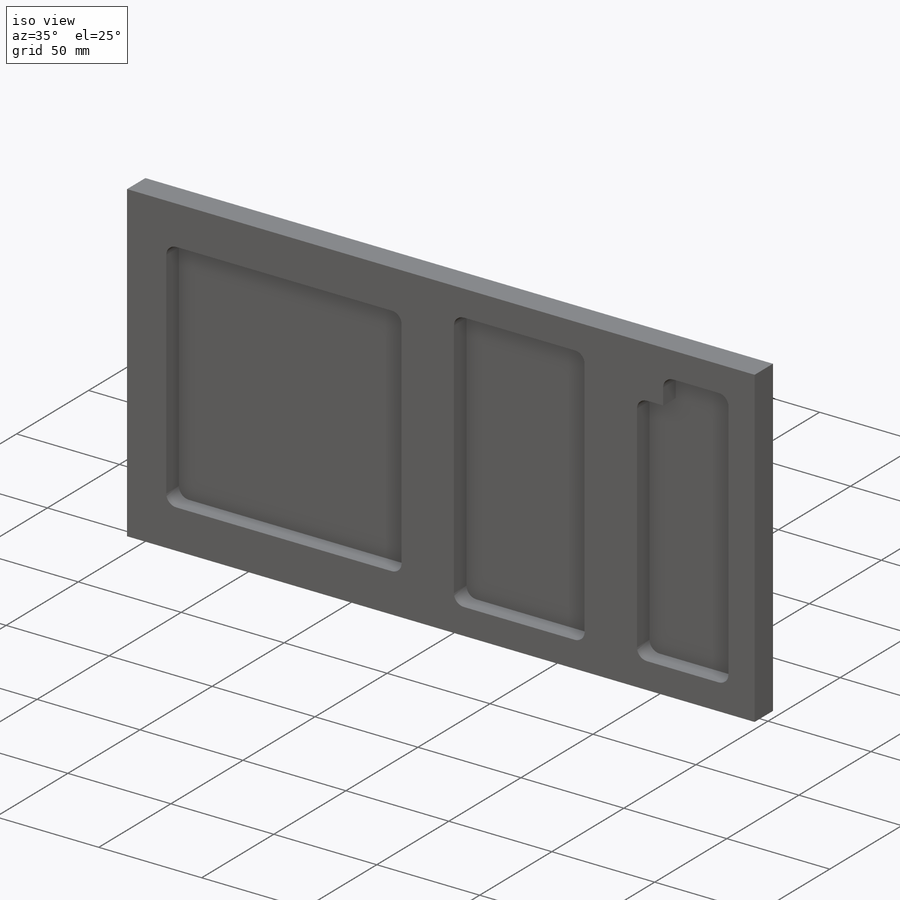
[diagram: iso view]
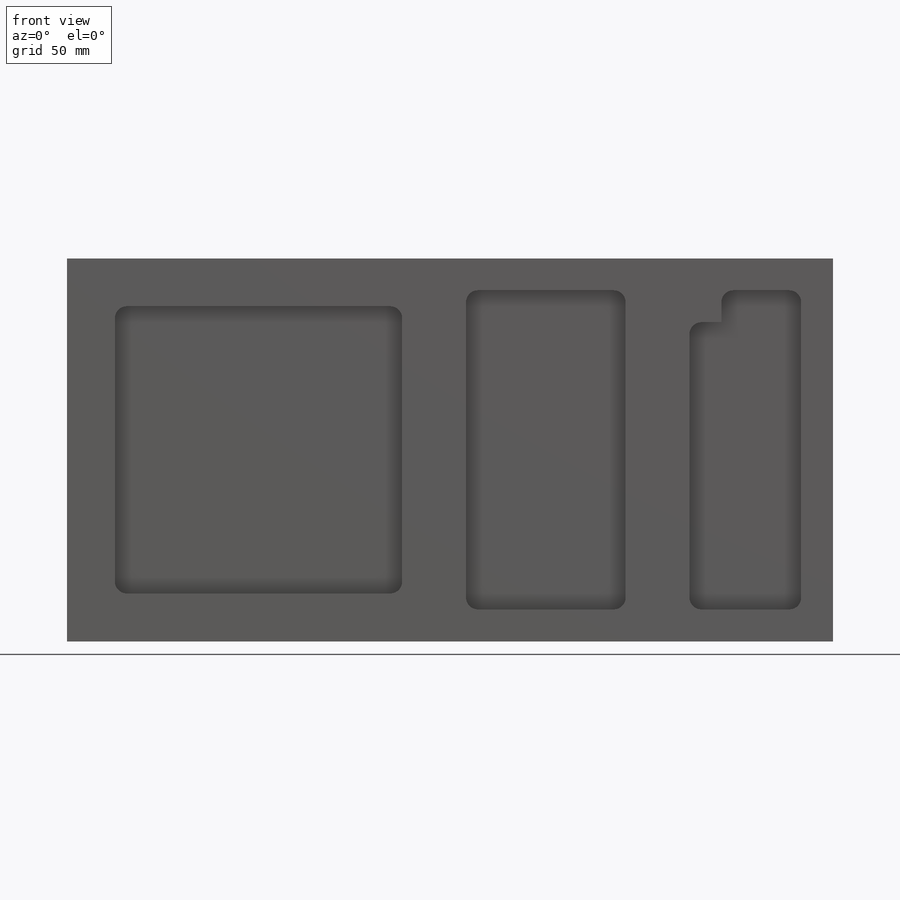
[diagram: front view]
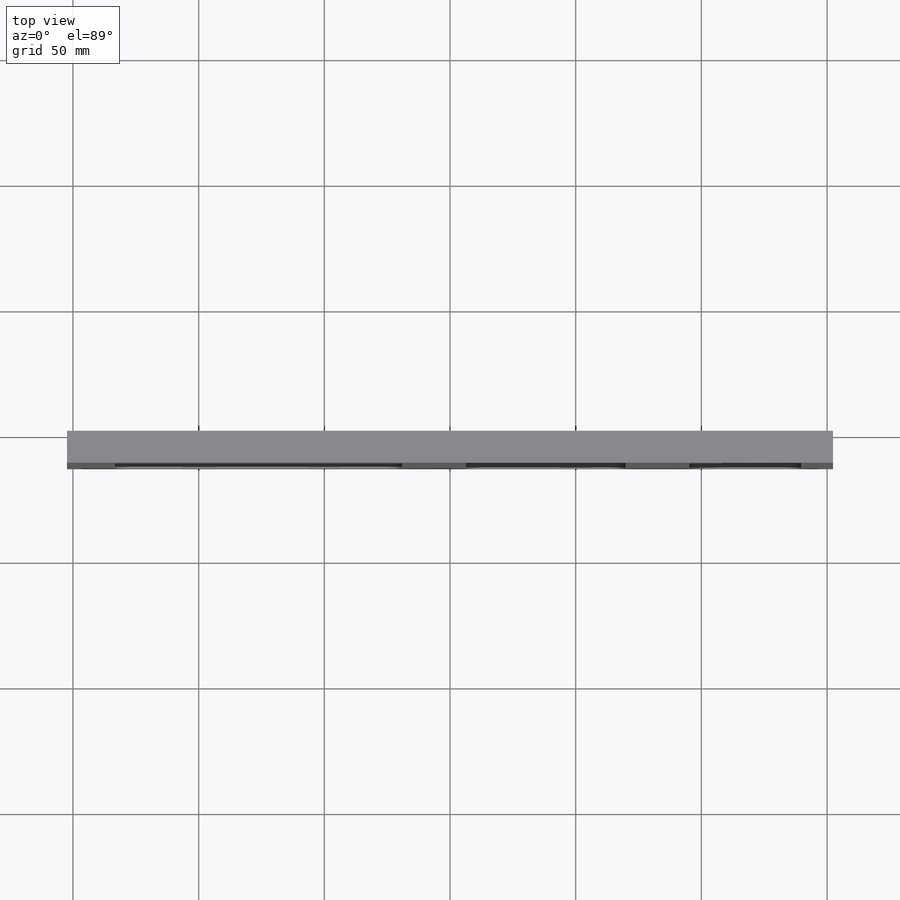
[diagram: top view]
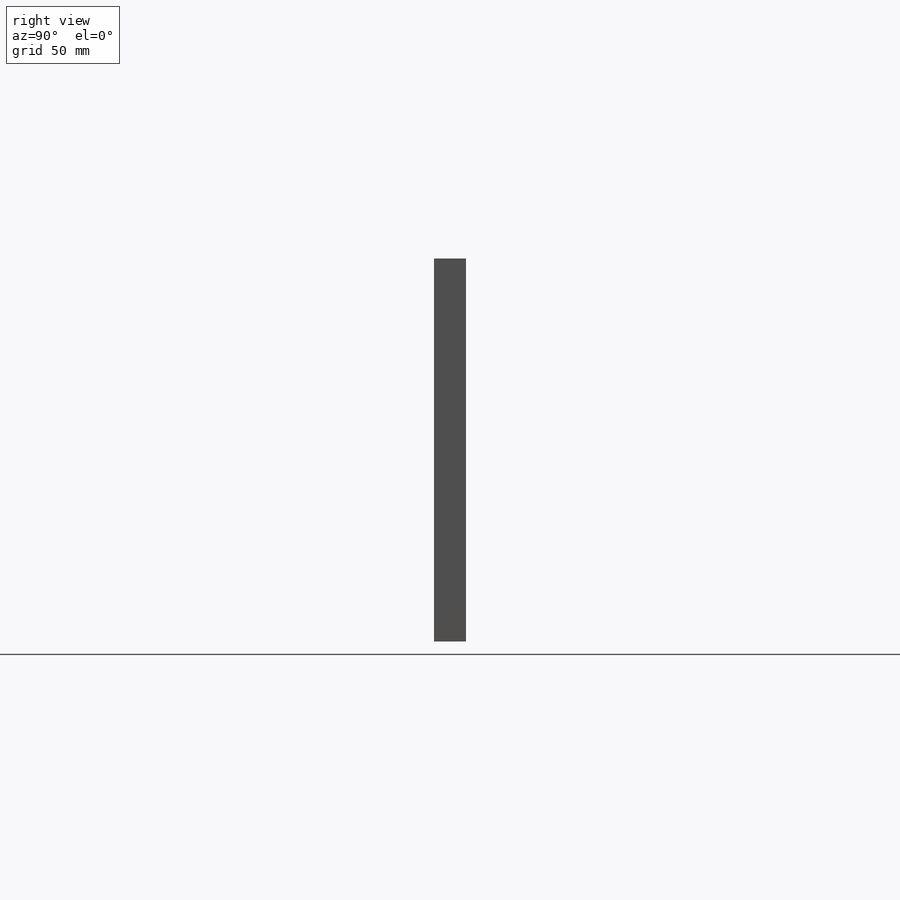
[diagram: right view]
SOLIDWORKS PART (.sldprt)
format: sldprt  version: not decoded by parser v0  size: 206,336 bytes
history: native  units: mm
features: sketch x3, cut_extrude x2, material x1, extrude x1 (+13 scaffold rows collapsed)
feature tree (20):
  scaffold x13  (default folders/planes/origin — collapsed)
  material  "Material <not specified>"
  sketch  "Sketch1"  dims[D1=304.8mm D2=152.4mm]
  extrude  "Boss-Extrude1"  Depth=12.7mm
  sketch  "Sketch2"  dims[D5=4.7625mm D1=19.05mm D2=19.05mm D3=19.05mm D4=114.3mm]
  cut_extrude  "Cut-Extrude1"  Depth=8.73252mm
  sketch  "Sketch3"  dims[D11=4.7625mm D1=25.4mm D2=12.7mm D3=12.7mm D4=44.45mm D5=63.5mm D6=82.55mm D7=12.7mm D8=12.7mm D9=12.7mm D10=44.45mm]
  cut_extrude  "Cut-Extrude2"  Depth=8.73252mm
decode coverage: 6 of 6 modeling features carry decoded parameters
note: suppression state not decoded; provenance and decode notes live in map.json
